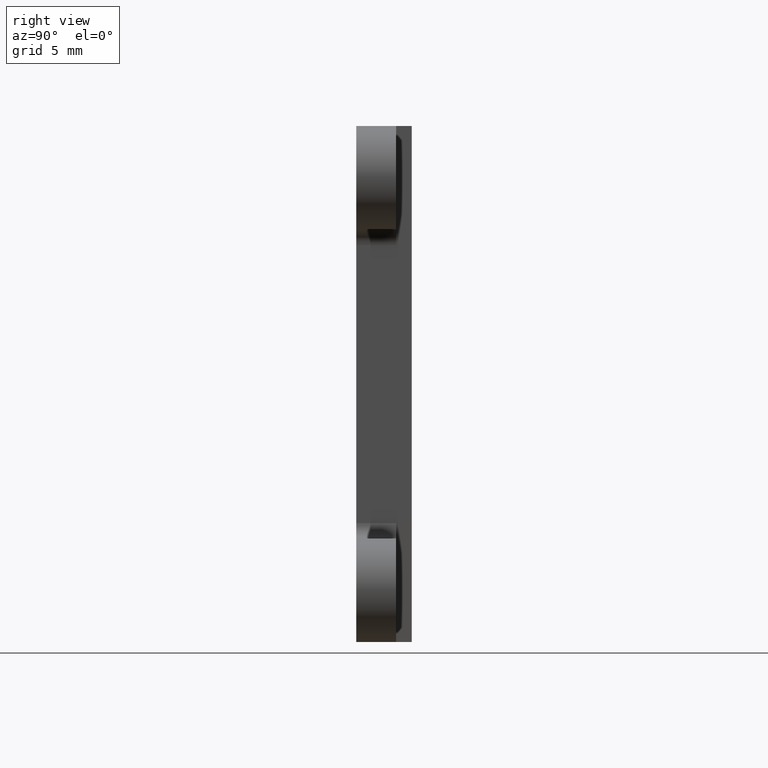
[diagram: clean part render]
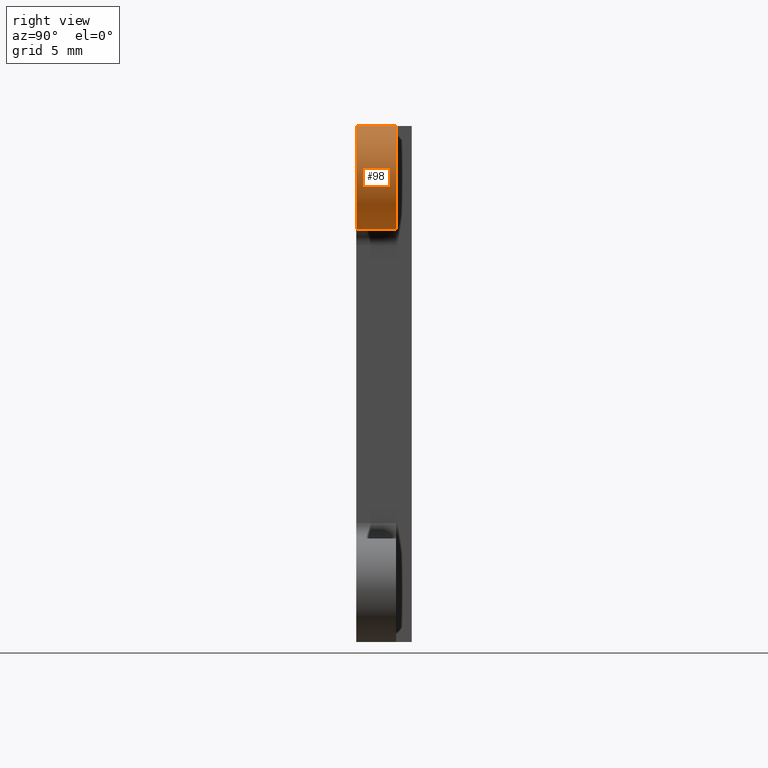
[diagram: same view with one face highlighted and labeled with its STEP entity id]
A machine part, right view. The second image highlights one B-rep face of the part: STEP entity #98.
In plain terms, the highlighted cylindrical surface (partial cylindrical patch) has radius 3.3 mm, axis along (0, 1, 0).
Its self-contained STEP definition (entity closure, byte-faithful):
#54=CYLINDRICAL_SURFACE('',#2307,3.29999999999995);
#98=ADVANCED_FACE('',(#209),#54,.T.);
#209=FACE_OUTER_BOUND('',#352,.F.);
#352=EDGE_LOOP('',(#565,#566,#567,#568));
#565=ORIENTED_EDGE('',*,*,#1731,.F.);
#566=ORIENTED_EDGE('',*,*,#1715,.T.);
#567=ORIENTED_EDGE('',*,*,#1732,.T.);
#568=ORIENTED_EDGE('',*,*,#1661,.F.);
#1319=LINE('',#3349,#1502);
#1320=LINE('',#3350,#1503);
#1502=VECTOR('',#2596,2.55);
#1503=VECTOR('',#2597,2.55);
#1661=EDGE_CURVE('',#2101,#2102,#1903,.T.);
#1715=EDGE_CURVE('',#2056,#2055,#1924,.T.);
#1731=EDGE_CURVE('',#2056,#2101,#1319,.T.);
#1732=EDGE_CURVE('',#2055,#2102,#1320,.T.);
#1903=CIRCLE('',#2218,3.29999999999995);
#1924=CIRCLE('',#2239,3.29999999999995);
#2055=VERTEX_POINT('',#3102);
#2056=VERTEX_POINT('',#3103);
#2101=VERTEX_POINT('',#3148);
#2102=VERTEX_POINT('',#3149);
#2218=AXIS2_PLACEMENT_3D('',#3279,#2502,#2503);
#2239=AXIS2_PLACEMENT_3D('',#3333,#2577,#2578);
#2307=AXIS2_PLACEMENT_3D('',#3508,#2820,#2821);
#2502=DIRECTION('',(0.,-1.,0.));
#2503=DIRECTION('',(0.,0.,-1.));
#2577=DIRECTION('',(0.,-1.,0.));
#2578=DIRECTION('',(0.,0.,-1.));
#2596=DIRECTION('',(0.,1.,0.));
#2597=DIRECTION('',(0.,1.,0.));
#2820=DIRECTION('',(0.,1.,0.));
#2821=DIRECTION('',(0.,0.,1.));
#3102=CARTESIAN_POINT('',(13.1698637884645,-14.988,16.469864189265));
#3103=CARTESIAN_POINT('',(13.1698637884645,-14.988,9.86986418926507));
#3148=CARTESIAN_POINT('',(13.1698637884645,-12.438,9.86986418926507));
#3149=CARTESIAN_POINT('',(13.1698637884645,-12.438,16.4698641892659));
#3279=CARTESIAN_POINT('',(13.1698637884645,-12.438,13.169864189265));
#3333=CARTESIAN_POINT('',(13.1698637884645,-14.988,13.169864189265));
#3349=CARTESIAN_POINT('',(13.1698637884645,-14.988,9.86986418926507));
#3350=CARTESIAN_POINT('',(13.1698637884645,-14.988,16.469864189265));
#3508=CARTESIAN_POINT('',(13.1698637884645,-14.988,13.169864189265));